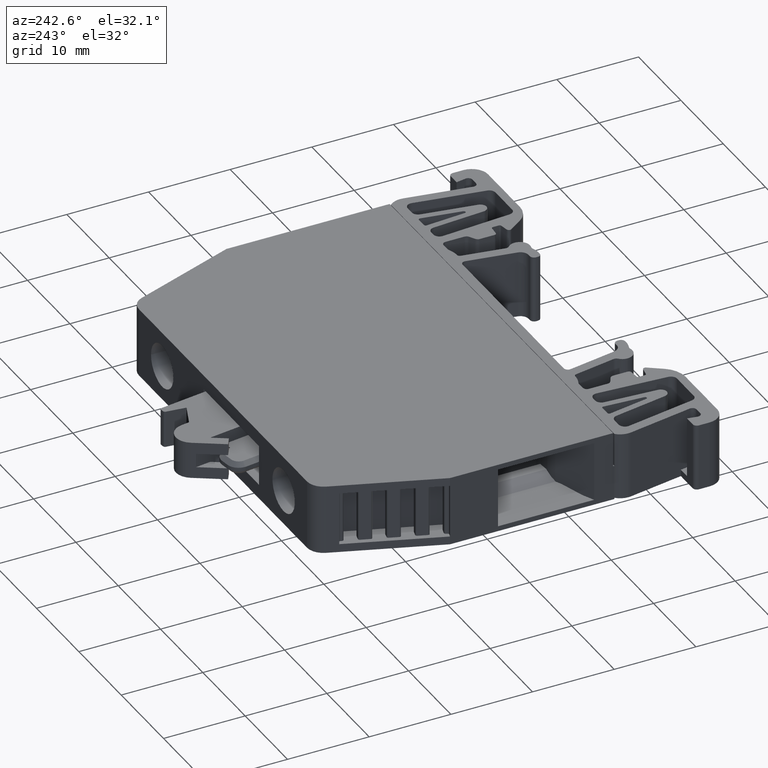
[diagram: clean part render]
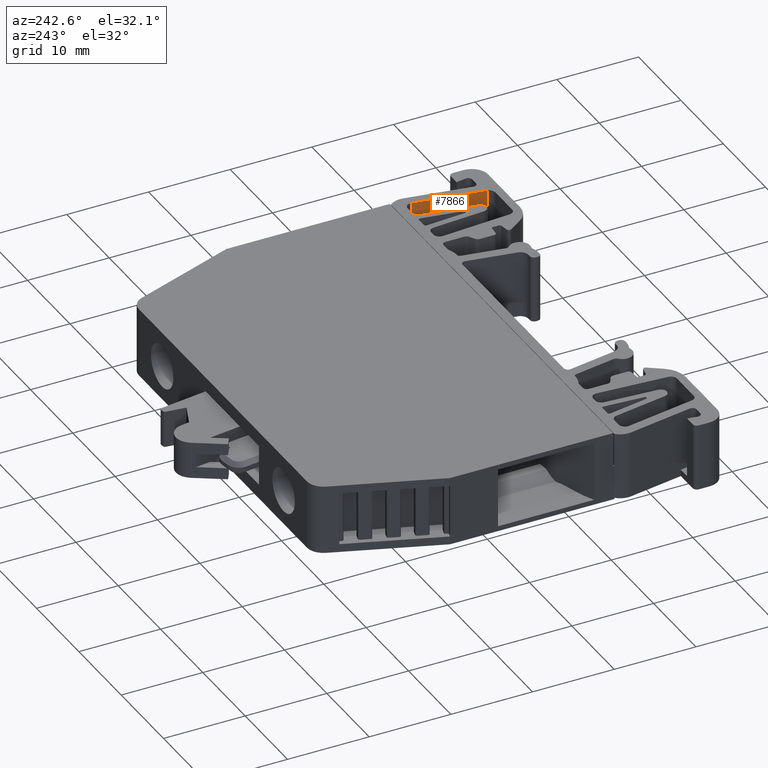
[diagram: same view with one face highlighted and labeled with its STEP entity id]
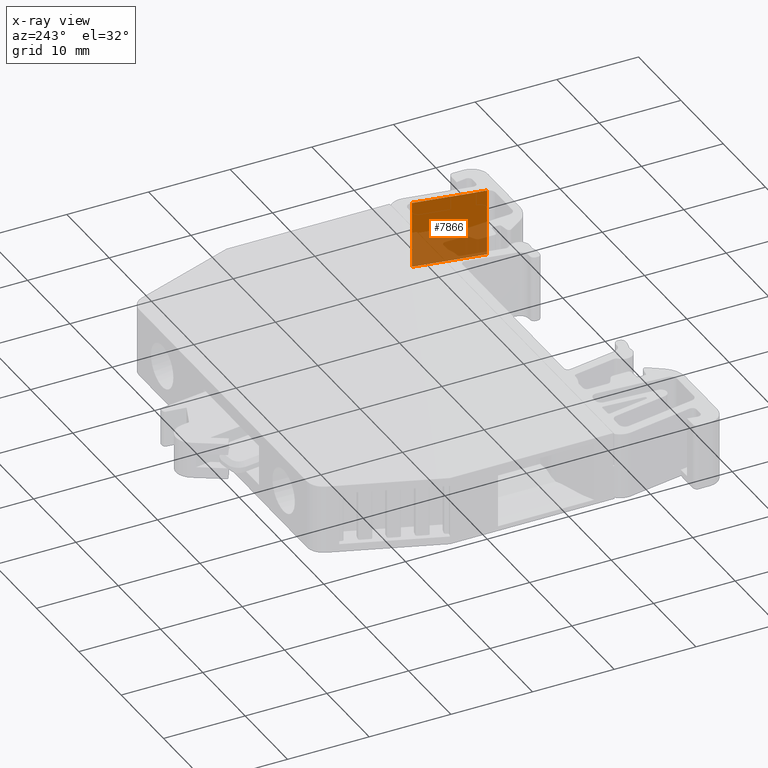
[diagram: x-ray of the same camera — body ghosted, the highlighted face saturated]
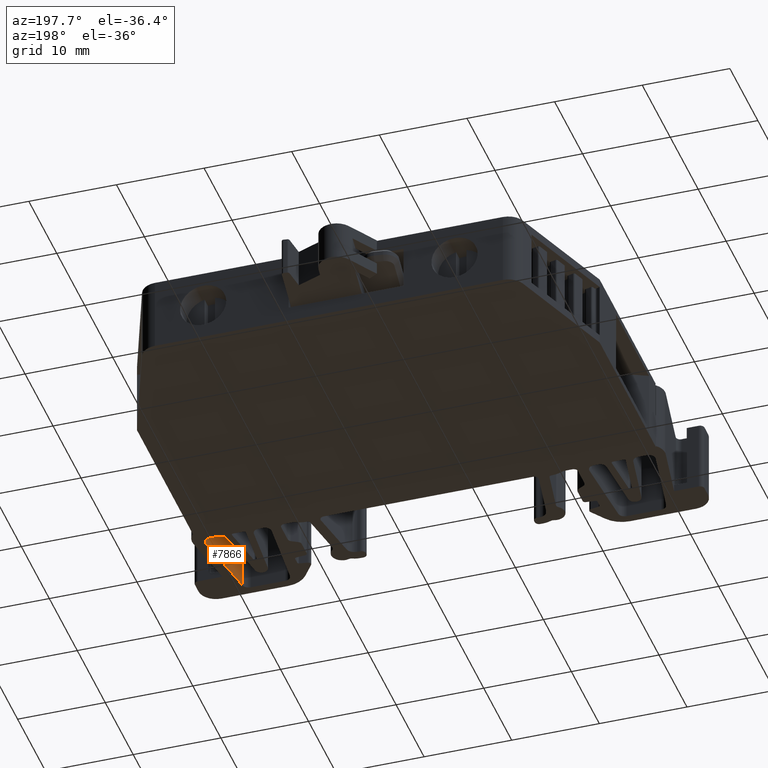
[diagram: same view with one face highlighted and labeled with its STEP entity id]
A machine part, auxiliary view. The second image highlights one B-rep face of the part: STEP entity #7866.
The next image is the same camera in x-ray: the body ghosted, the highlighted face saturated — about 47% of this face is hidden behind the body in this view.
A second angle (auxiliary view) of the same face is appended — the face is thin or edge-on in the first view.
In plain terms, the highlighted planar face has unit normal (0.9848, -0.1736, 0).
Its self-contained STEP definition (entity closure, byte-faithful):
#387 = EDGE_CURVE ( 'NONE', #8482, #8763, #3432, .T. ) ;
#798 = EDGE_CURVE ( 'NONE', #8655, #8663, #2731, .T. ) ;
#2731 = LINE ( 'NONE', #2771, #11004 ) ;
#2751 = DIRECTION ( 'NONE',  ( 0.1736480269953534200, 0.9848077795796603700, 0.0000000000000000000 ) ) ;
#2771 = CARTESIAN_POINT ( 'NONE',  ( 579.8068493477502400, 244.1877790562578200, -0.006012645352508764900 ) ) ;
#3406 = DIRECTION ( 'NONE',  ( -0.1736480269953534200, -0.9848077795796603700, -0.0000000000000000000 ) ) ;
#3422 = CARTESIAN_POINT ( 'NONE',  ( 579.8068493477502400, 244.1877790562578200, 8.193043958385491300 ) ) ;
#3432 = LINE ( 'NONE', #3422, #10416 ) ;
#4676 = FACE_OUTER_BOUND ( 'NONE', #12144, .T. ) ;
#4680 = DIRECTION ( 'NONE',  ( 0.1736480269953399900, 0.9848077795796628100, 0.0000000000000000000 ) ) ;
#4691 = CARTESIAN_POINT ( 'NONE',  ( 578.4515394812767700, 236.5014279739034700, 8.178043958385492500 ) ) ;
#4693 = DIRECTION ( 'NONE',  ( 0.9848077795796628100, -0.1736480269953399900, 0.0000000000000000000 ) ) ;
#4700 = PLANE ( 'NONE',  #10041 ) ;
#6909 = CARTESIAN_POINT ( 'NONE',  ( 581.2999716421247700, 252.6557039547259600, 8.193043958385491300 ) ) ;
#7017 = CARTESIAN_POINT ( 'NONE',  ( 579.8068493477503600, 244.1877790562578200, -0.006012645352508963500 ) ) ;
#7019 = CARTESIAN_POINT ( 'NONE',  ( 581.2999716421247700, 252.6557039547259600, -0.006012645352508480400 ) ) ;
#7178 = CARTESIAN_POINT ( 'NONE',  ( 579.8068493477503600, 244.1877790562578200, 8.193043958385491300 ) ) ;
#7866 = ADVANCED_FACE ( 'NONE', ( #4676 ), #4700, .F. ) ;
#7929 = EDGE_CURVE ( 'NONE', #8663, #8482, #9095, .T. ) ;
#7957 = EDGE_CURVE ( 'NONE', #8763, #8655, #9191, .T. ) ;
#8482 = VERTEX_POINT ( 'NONE', #6909 ) ;
#8655 = VERTEX_POINT ( 'NONE', #7017 ) ;
#8663 = VERTEX_POINT ( 'NONE', #7019 ) ;
#8763 = VERTEX_POINT ( 'NONE', #7178 ) ;
#9085 = DIRECTION ( 'NONE',  ( -0.0000000000000000000, 0.0000000000000000000, 1.000000000000000000 ) ) ;
#9095 = LINE ( 'NONE', #9103, #10018 ) ;
#9103 = CARTESIAN_POINT ( 'NONE',  ( 581.2999716421248900, 252.6557039547259600, 8.178043958385492500 ) ) ;
#9190 = CARTESIAN_POINT ( 'NONE',  ( 579.8068493477504700, 244.1877790562578000, 8.178043958385492500 ) ) ;
#9191 = LINE ( 'NONE', #9190, #10076 ) ;
#9229 = DIRECTION ( 'NONE',  ( 0.0000000000000000000, -0.0000000000000000000, -1.000000000000000000 ) ) ;
#10018 = VECTOR ( 'NONE', #9085, 1000.000000000000000 ) ;
#10041 = AXIS2_PLACEMENT_3D ( 'NONE', #4691, #4693, #4680 ) ;
#10076 = VECTOR ( 'NONE', #9229, 1000.000000000000000 ) ;
#10416 = VECTOR ( 'NONE', #3406, 1000.000000000000100 ) ;
#11004 = VECTOR ( 'NONE', #2751, 1000.000000000000100 ) ;
#12144 = EDGE_LOOP ( 'NONE', ( #13652, #13743, #13673, #13686 ) ) ;
#13652 = ORIENTED_EDGE ( 'NONE', *, *, #7929, .F. ) ;
#13673 = ORIENTED_EDGE ( 'NONE', *, *, #7957, .F. ) ;
#13686 = ORIENTED_EDGE ( 'NONE', *, *, #387, .F. ) ;
#13743 = ORIENTED_EDGE ( 'NONE', *, *, #798, .F. ) ;